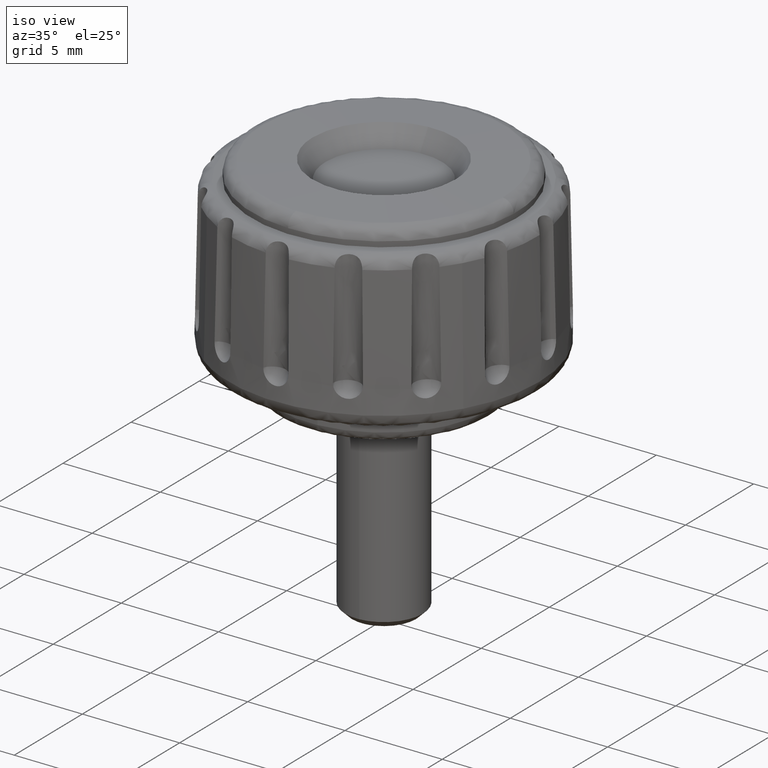
[diagram: clean part render]
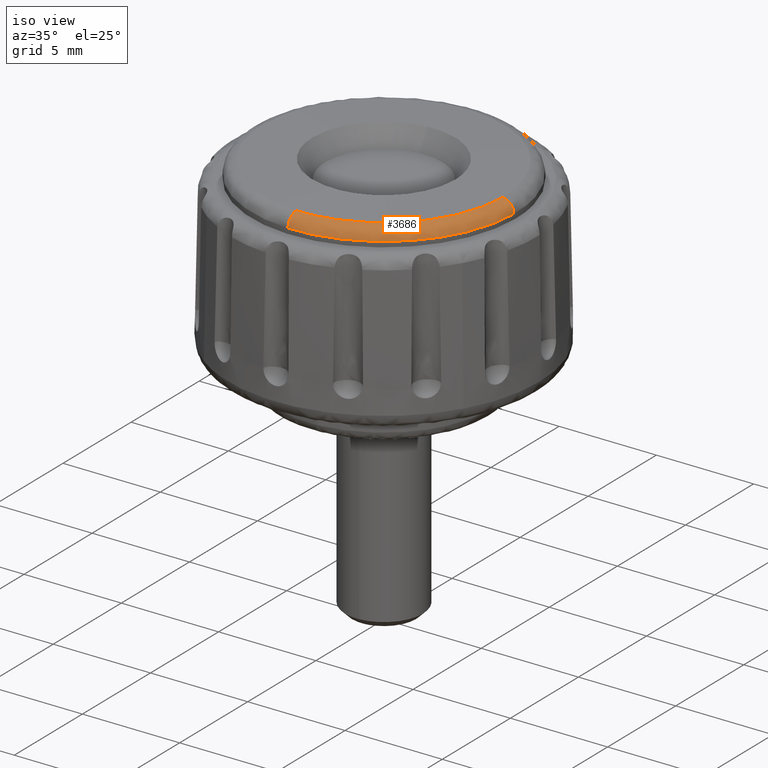
[diagram: same view with one face highlighted and labeled with its STEP entity id]
A machine part, iso view. The second image highlights one B-rep face of the part: STEP entity #3686.
In plain terms, the highlighted face is a freeform B-spline surface patch.
Its self-contained STEP definition (entity closure, byte-faithful):
#1561=CARTESIAN_POINT('',(6.797851488505748,-0.170884581007570,10.271301773317809));
#1562=VERTEX_POINT('',#1561);
#1576=CARTESIAN_POINT('',(-0.170884559555309,-6.797851489057097,10.271300005122569));
#1577=VERTEX_POINT('',#1576);
#1578=CARTESIAN_POINT('',(6.797851488505748,-0.170884581007570,10.271301773317816));
#1579=CARTESIAN_POINT('',(6.631208624689340,-6.799999000000000,10.271300999999799));
#1580=CARTESIAN_POINT('',(0.0,-6.799999000000001,10.271300999999800));
#1581=CARTESIAN_POINT('',(-0.085455741512243,-6.799999000000002,10.271300999999804));
#1582=CARTESIAN_POINT('',(-0.170884559555309,-6.797851489057097,10.271300005122573));
#1590=(BOUNDED_CURVE()B_SPLINE_CURVE(2,(#1578,#1579,#1580,#1581,#1582),.UNSPECIFIED.,.F.,.U.)B_SPLINE_CURVE_WITH_KNOTS((3,2,3),(0.504420107126538,0.750000000000000,0.754420104918496),.UNSPECIFIED.)CURVE()GEOMETRIC_REPRESENTATION_ITEM()RATIONAL_B_SPLINE_CURVE((0.989826160176156,0.712285258801715,1.0,0.994821524971714,0.989826165166972))REPRESENTATION_ITEM(''));
#1591=EDGE_CURVE('',#1562,#1577,#1590,.T.);
#3543=CARTESIAN_POINT('',(-0.156432296181891,-6.222932717152220,10.870779798246550));
#3544=VERTEX_POINT('',#3543);
#3545=CARTESIAN_POINT('',(-0.156432296181891,-6.222932717152220,10.870779798246549));
#3546=CARTESIAN_POINT('',(-0.170884543712437,-6.797848298164927,10.846893063486869));
#3547=CARTESIAN_POINT('',(-0.170884559555309,-6.797851489057097,10.271300005122573));
#3555=(BOUNDED_CURVE()B_SPLINE_CURVE(2,(#3545,#3546,#3547),.UNSPECIFIED.,.F.,.U.)B_SPLINE_CURVE_WITH_KNOTS((3,3),(-1.725631950937387,-0.270367032305007),.UNSPECIFIED.)CURVE()GEOMETRIC_REPRESENTATION_ITEM()RATIONAL_B_SPLINE_CURVE((0.889236349179346,0.642192519716579,0.890598508742837))REPRESENTATION_ITEM(''));
#3556=EDGE_CURVE('',#3544,#1577,#3555,.T.);
#3573=CARTESIAN_POINT('',(6.222932735984559,-0.156432296652698,10.870779797464101));
#3574=VERTEX_POINT('',#3573);
#3630=CARTESIAN_POINT('',(6.222932735984558,-0.156432296652698,10.870779797464103));
#3631=CARTESIAN_POINT('',(6.797846602434611,-0.170884501085111,10.846893115838451));
#3632=CARTESIAN_POINT('',(6.797851488505748,-0.170884581007570,10.271301773317813));
#3640=(BOUNDED_CURVE()B_SPLINE_CURVE(2,(#3630,#3631,#3632),.UNSPECIFIED.,.F.,.U.)B_SPLINE_CURVE_WITH_KNOTS((3,3),(-1.725631917933681,-0.270370132172976),.UNSPECIFIED.)CURVE()GEOMETRIC_REPRESENTATION_ITEM()RATIONAL_B_SPLINE_CURVE((0.889236337974016,0.642193051579560,0.890597450483103))REPRESENTATION_ITEM(''));
#3641=EDGE_CURVE('',#3574,#1562,#3640,.T.);
#3649=CARTESIAN_POINT('',(6.182012132918599,-0.155403633064852,10.871082402892419));
#3650=CARTESIAN_POINT('',(6.026608499853749,-6.337415765983453,10.871082402892419));
#3651=CARTESIAN_POINT('',(-0.155403633064851,-6.182012132918599,10.871082402892419));
#3652=CARTESIAN_POINT('',(6.841358568335852,-0.171978306376569,10.888714095724483));
#3653=CARTESIAN_POINT('',(6.669380261959281,-7.013336874712420,10.888714095724486));
#3654=CARTESIAN_POINT('',(-0.171978306376569,-6.841358568335852,10.888714095724483));
#3655=CARTESIAN_POINT('',(6.796460218030270,-0.170849650106396,10.230454129936033));
#3656=CARTESIAN_POINT('',(6.625610567923874,-6.967309868136666,10.230454129936032));
#3657=CARTESIAN_POINT('',(-0.170849650106396,-6.796460218030270,10.230454129936033));
#3665=(BOUNDED_SURFACE()B_SPLINE_SURFACE(2,2,((#3649,#3652,#3655),(#3650,#3653,#3656),(#3651,#3654,#3657)),.UNSPECIFIED.,.F.,.F.,.U.)B_SPLINE_SURFACE_WITH_KNOTS((3,3),(3,3),(0.0,11.264301380841570),(0.0,1.061460636400080),.UNSPECIFIED.)GEOMETRIC_REPRESENTATION_ITEM()RATIONAL_B_SPLINE_SURFACE(((0.915152166909946,0.616208761463171,0.916650206523540),(0.647110303039586,0.435725393857172,0.648169577008844),(0.915152166909946,0.616208761463171,0.916650206523540)))REPRESENTATION_ITEM('')SURFACE());
#3666=ORIENTED_EDGE('',*,*,#1591,.F.);
#3667=ORIENTED_EDGE('',*,*,#3641,.F.);
#3668=CARTESIAN_POINT('',(6.222932735984559,-0.156432296652698,10.870779797464101));
#3669=CARTESIAN_POINT('',(6.070383390642336,-6.224898594377520,10.870779798764360));
#3670=CARTESIAN_POINT('',(0.0,-6.224898594377520,10.870779798764360));
#3671=CARTESIAN_POINT('',(-0.078228500667137,-6.224898594377520,10.870779798764357));
#3672=CARTESIAN_POINT('',(-0.156432296181891,-6.222932717152221,10.870779798246549));
#3680=(BOUNDED_CURVE()B_SPLINE_CURVE(2,(#3668,#3669,#3670,#3671,#3672),.UNSPECIFIED.,.F.,.U.)B_SPLINE_CURVE_WITH_KNOTS((3,2,3),(0.504420108231998,0.750000000000000,0.754420108233948),.UNSPECIFIED.)CURVE()GEOMETRIC_REPRESENTATION_ITEM()RATIONAL_B_SPLINE_CURVE((0.989826157677496,0.712285260096842,1.0,0.994821521087420,0.989826157673087))REPRESENTATION_ITEM(''));
#3681=EDGE_CURVE('',#3574,#3544,#3680,.T.);
#3682=ORIENTED_EDGE('',*,*,#3681,.T.);
#3683=ORIENTED_EDGE('',*,*,#3556,.T.);
#3684=EDGE_LOOP('',(#3666,#3667,#3682,#3683));
#3685=FACE_OUTER_BOUND('',#3684,.T.);
#3686=ADVANCED_FACE('',(#3685),#3665,.T.);